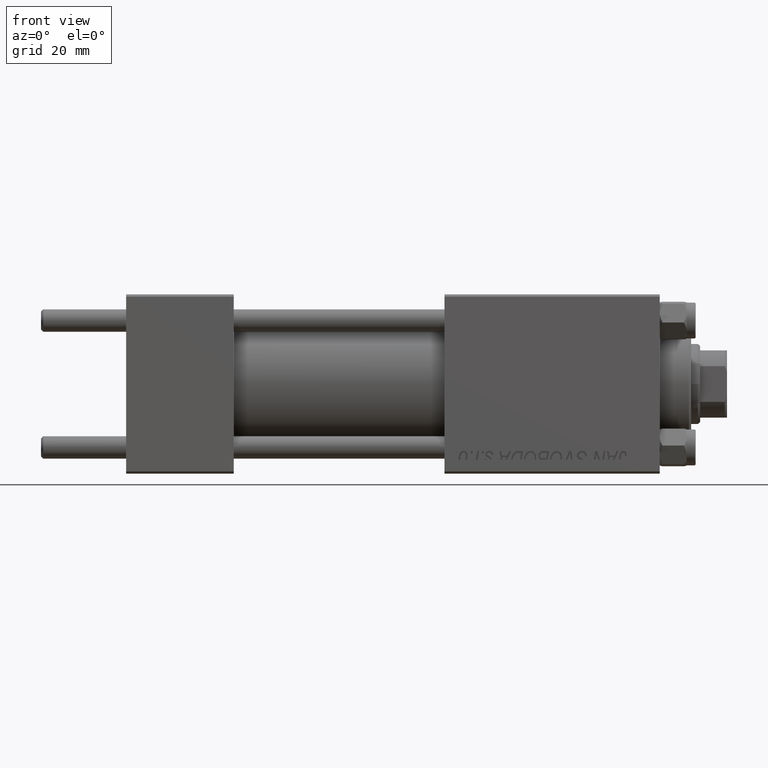
[diagram: clean part render]
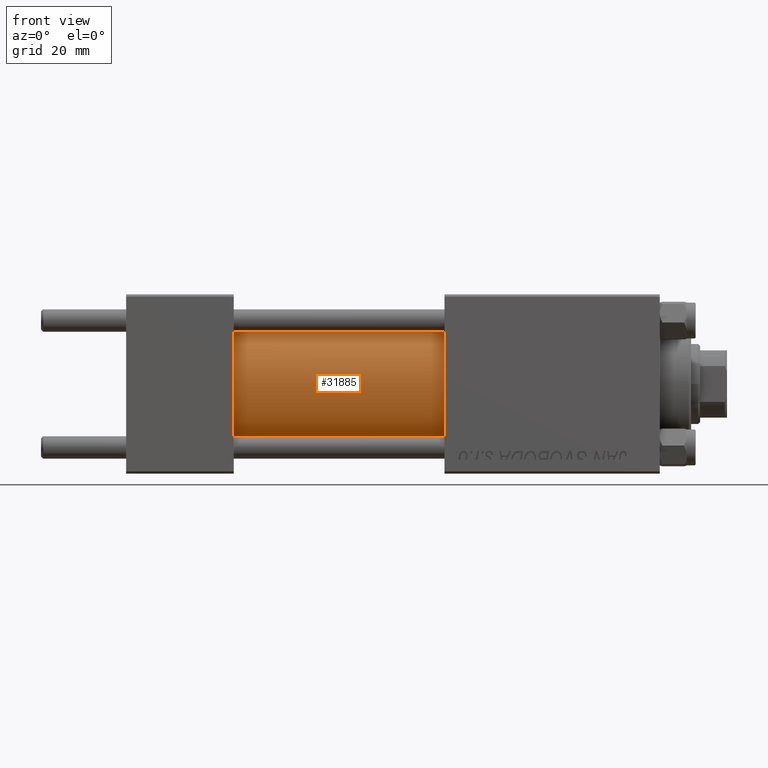
[diagram: same view with one face highlighted and labeled with its STEP entity id]
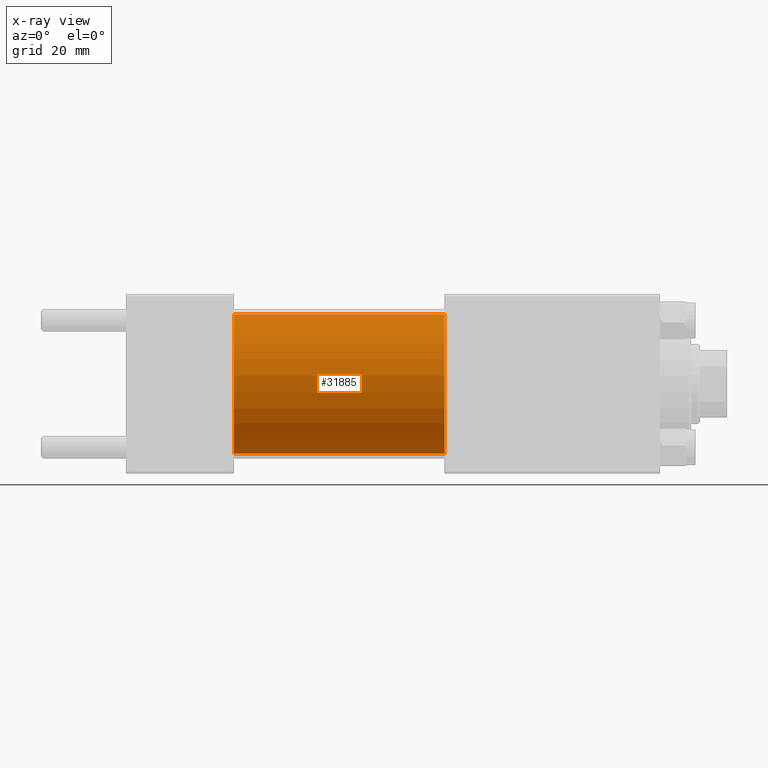
[diagram: x-ray of the same camera — body ghosted, the highlighted face saturated]
A machine part, front view. The second image highlights one B-rep face of the part: STEP entity #31885.
The next image is the same camera in x-ray: the body ghosted, the highlighted face saturated — about 0% of this face is hidden behind the body in this view.
In plain terms, the highlighted cylindrical surface (partial cylindrical patch) has radius 15.5 mm, axis along (-1, -0, -0).
Its self-contained STEP definition (entity closure, byte-faithful):
#606 = CIRCLE ( 'NONE', #9558, 15.50000000000000000 ) ;
#3769 = VECTOR ( 'NONE', #48712, 1000.000000000000000 ) ;
#5039 = VERTEX_POINT ( 'NONE', #25408 ) ;
#5183 = CARTESIAN_POINT ( 'NONE',  ( 71.00000000000001421, 1.898202538678397557E-15, -15.50000000000000000 ) ) ;
#5816 = LINE ( 'NONE', #33326, #3769 ) ;
#6525 = EDGE_CURVE ( 'NONE', #25404, #5039, #606, .T. ) ;
#9558 = AXIS2_PLACEMENT_3D ( 'NONE', #13680, #37390, #10642 ) ;
#10642 = DIRECTION ( 'NONE',  ( 0.000000000000000000, 0.000000000000000000, 1.000000000000000000 ) ) ;
#11492 = ORIENTED_EDGE ( 'NONE', *, *, #14218, .F. ) ;
#11673 = FACE_OUTER_BOUND ( 'NONE', #36894, .T. ) ;
#13680 = CARTESIAN_POINT ( 'NONE',  ( 24.00000000000000000, 0.000000000000000000, 0.000000000000000000 ) ) ;
#13745 = CIRCLE ( 'NONE', #39541, 15.50000000000000000 ) ;
#14218 = EDGE_CURVE ( 'NONE', #30214, #29233, #13745, .T. ) ;
#18235 = DIRECTION ( 'NONE',  ( 1.000000000000000000, 0.000000000000000000, 0.000000000000000000 ) ) ;
#18623 = CARTESIAN_POINT ( 'NONE',  ( 71.00000000000001421, 0.000000000000000000, 15.50000000000000000 ) ) ;
#19128 = VECTOR ( 'NONE', #35947, 1000.000000000000000 ) ;
#20581 = CARTESIAN_POINT ( 'NONE',  ( 71.00000000000001421, 1.898202538678397557E-15, -15.50000000000000000 ) ) ;
#22678 = EDGE_CURVE ( 'NONE', #30214, #25404, #5816, .T. ) ;
#23908 = EDGE_CURVE ( 'NONE', #29233, #5039, #46585, .T. ) ;
#25404 = VERTEX_POINT ( 'NONE', #27493 ) ;
#25408 = CARTESIAN_POINT ( 'NONE',  ( 24.00000000000000000, 1.898202538678397557E-15, -15.50000000000000000 ) ) ;
#27493 = CARTESIAN_POINT ( 'NONE',  ( 24.00000000000000000, 0.000000000000000000, 15.50000000000000000 ) ) ;
#29233 = VERTEX_POINT ( 'NONE', #5183 ) ;
#29882 = ORIENTED_EDGE ( 'NONE', *, *, #23908, .F. ) ;
#30214 = VERTEX_POINT ( 'NONE', #18623 ) ;
#31849 = CARTESIAN_POINT ( 'NONE',  ( 71.00000000000001421, 0.000000000000000000, 0.000000000000000000 ) ) ;
#31885 = ADVANCED_FACE ( 'NONE', ( #11673 ), #46740, .T. ) ;
#33326 = CARTESIAN_POINT ( 'NONE',  ( 71.00000000000001421, 0.000000000000000000, 15.50000000000000000 ) ) ;
#33621 = DIRECTION ( 'NONE',  ( 0.000000000000000000, 0.000000000000000000, -1.000000000000000000 ) ) ;
#34739 = ORIENTED_EDGE ( 'NONE', *, *, #6525, .T. ) ;
#35947 = DIRECTION ( 'NONE',  ( -1.000000000000000000, -0.000000000000000000, -0.000000000000000000 ) ) ;
#36281 = AXIS2_PLACEMENT_3D ( 'NONE', #31849, #42973, #39664 ) ;
#36894 = EDGE_LOOP ( 'NONE', ( #29882, #11492, #40950, #34739 ) ) ;
#37390 = DIRECTION ( 'NONE',  ( 1.000000000000000000, 0.000000000000000000, 0.000000000000000000 ) ) ;
#39541 = AXIS2_PLACEMENT_3D ( 'NONE', #41204, #18235, #33621 ) ;
#39664 = DIRECTION ( 'NONE',  ( 0.000000000000000000, 0.000000000000000000, 1.000000000000000000 ) ) ;
#40950 = ORIENTED_EDGE ( 'NONE', *, *, #22678, .T. ) ;
#41204 = CARTESIAN_POINT ( 'NONE',  ( 71.00000000000001421, 0.000000000000000000, 0.000000000000000000 ) ) ;
#42973 = DIRECTION ( 'NONE',  ( -1.000000000000000000, -0.000000000000000000, -0.000000000000000000 ) ) ;
#46585 = LINE ( 'NONE', #20581, #19128 ) ;
#46740 = CYLINDRICAL_SURFACE ( 'NONE', #36281, 15.50000000000000000 ) ;
#48712 = DIRECTION ( 'NONE',  ( -1.000000000000000000, -0.000000000000000000, -0.000000000000000000 ) ) ;